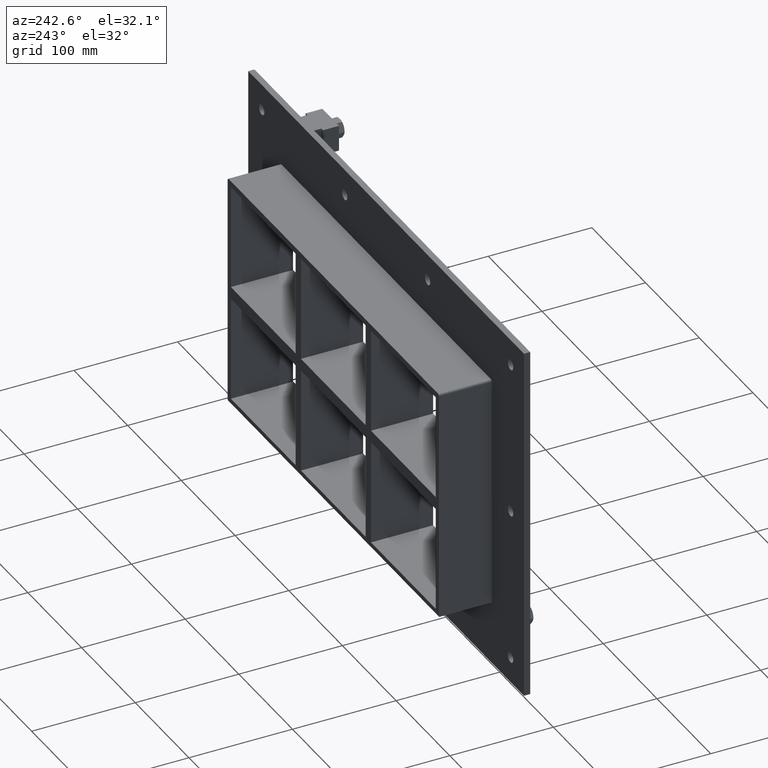
[diagram: clean part render]
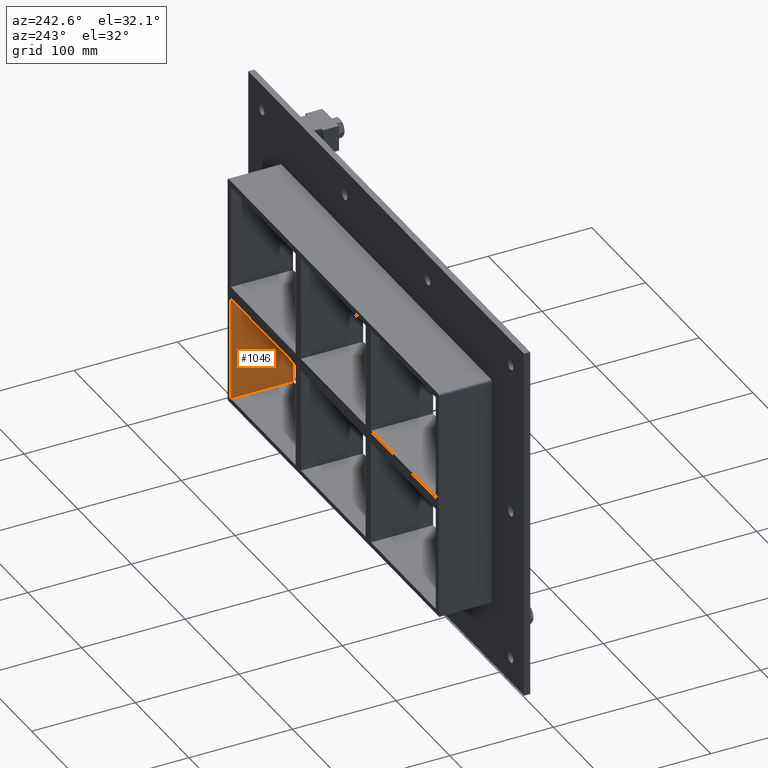
[diagram: same view with one face highlighted and labeled with its STEP entity id]
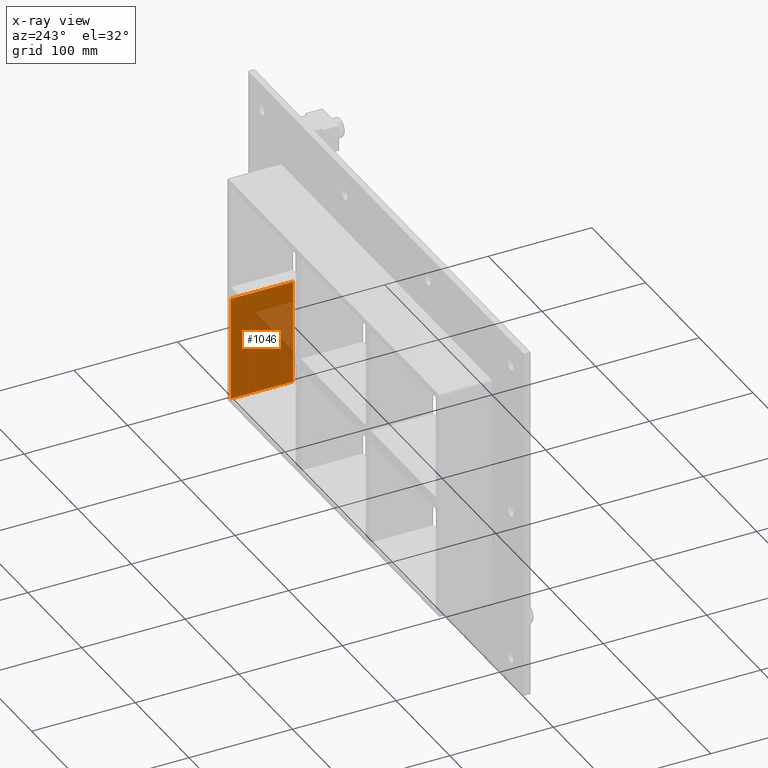
[diagram: x-ray of the same camera — body ghosted, the highlighted face saturated]
A machine part, auxiliary view. The second image highlights one B-rep face of the part: STEP entity #1046.
The next image is the same camera in x-ray: the body ghosted, the highlighted face saturated — about 22% of this face is hidden behind the body in this view.
In plain terms, the highlighted planar face has unit normal (1, 0, 0).
Its self-contained STEP definition (entity closure, byte-faithful):
#545=CARTESIAN_POINT('',(190.75000000000003,-3.0,-107.0));
#546=VERTEX_POINT('',#545);
#553=CARTESIAN_POINT('',(190.75000000000003,57.0,-107.0));
#554=VERTEX_POINT('',#553);
#555=CARTESIAN_POINT('',(190.75000000000003,56.999999999999993,-107.0));
#556=DIRECTION('',(0.0,-1.0,0.0));
#557=VECTOR('',#556,59.999999999999993);
#558=LINE('',#555,#557);
#559=EDGE_CURVE('',#554,#546,#558,.T.);
#714=CARTESIAN_POINT('',(190.75000000000728,-3.0,-6.000000000010903));
#715=VERTEX_POINT('',#714);
#722=CARTESIAN_POINT('',(190.75000000000003,-3.0,-6.0000000000109));
#723=DIRECTION('',(0.0,0.0,-1.0));
#724=VECTOR('',#723,100.99999999998907);
#725=LINE('',#722,#724);
#726=EDGE_CURVE('',#715,#546,#725,.T.);
#806=CARTESIAN_POINT('',(190.75000000000728,57.0,-6.000000000010903));
#807=VERTEX_POINT('',#806);
#814=CARTESIAN_POINT('',(190.75000000000003,-3.0,-6.000000000010903));
#815=DIRECTION('',(0.0,1.0,0.0));
#816=VECTOR('',#815,60.000000000000007);
#817=LINE('',#814,#816);
#818=EDGE_CURVE('',#715,#807,#817,.T.);
#1030=CARTESIAN_POINT('',(190.75000000000003,0.0,107.00000000000003));
#1031=DIRECTION('',(1.0,0.0,0.0));
#1032=DIRECTION('',(0.0,0.0,-1.0));
#1033=AXIS2_PLACEMENT_3D('',#1030,#1031,#1032);
#1034=PLANE('',#1033);
#1035=ORIENTED_EDGE('',*,*,#818,.T.);
#1036=CARTESIAN_POINT('',(190.75000000000003,57.0,-106.99999999999997));
#1037=DIRECTION('',(0.0,0.0,1.0));
#1038=VECTOR('',#1037,100.99999999998907);
#1039=LINE('',#1036,#1038);
#1040=EDGE_CURVE('',#554,#807,#1039,.T.);
#1041=ORIENTED_EDGE('',*,*,#1040,.F.);
#1042=ORIENTED_EDGE('',*,*,#559,.T.);
#1043=ORIENTED_EDGE('',*,*,#726,.F.);
#1044=EDGE_LOOP('',(#1035,#1041,#1042,#1043));
#1045=FACE_OUTER_BOUND('',#1044,.T.);
#1046=ADVANCED_FACE('',(#1045),#1034,.F.);